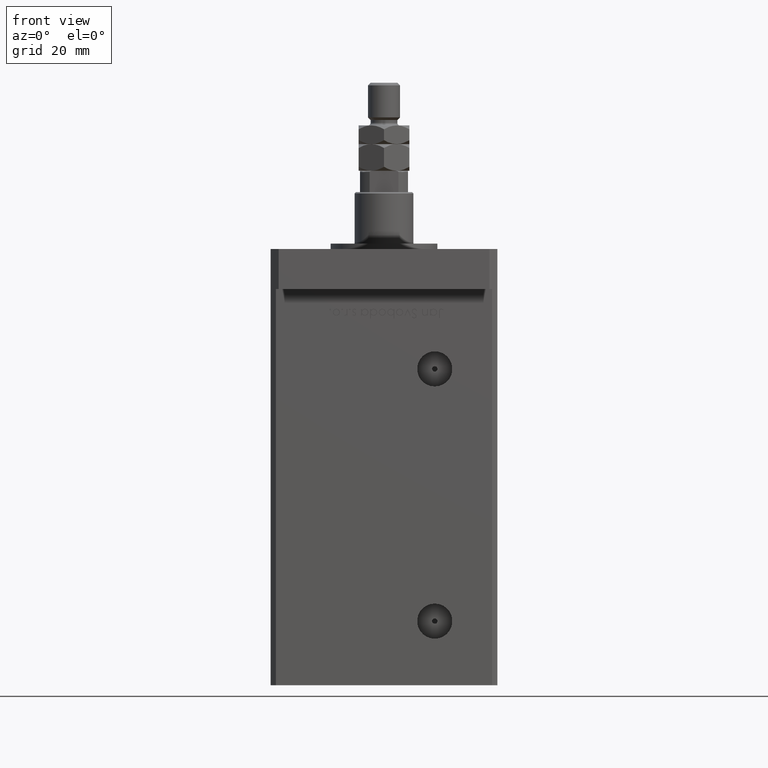
[diagram: clean part render]
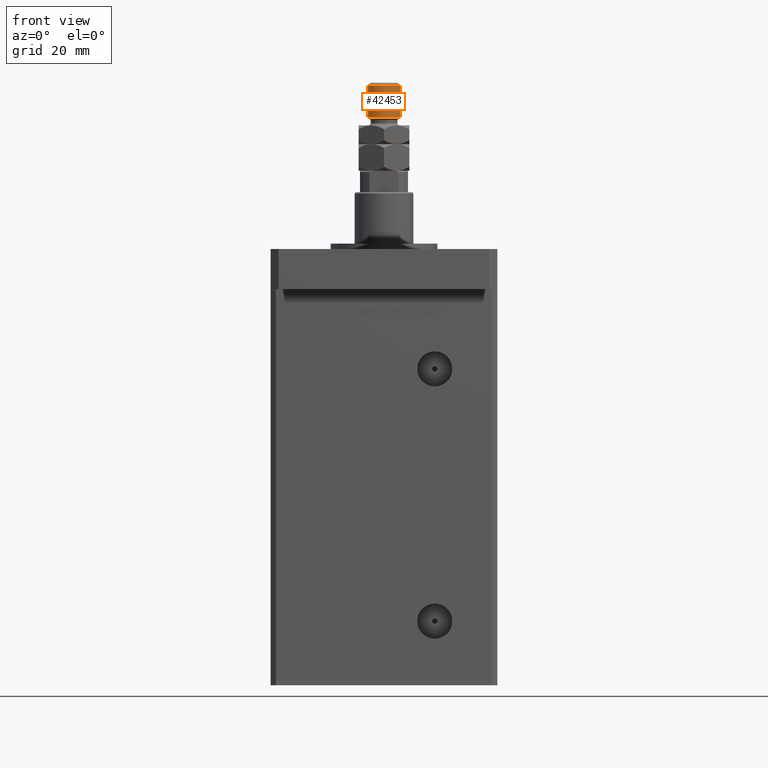
[diagram: same view with one face highlighted and labeled with its STEP entity id]
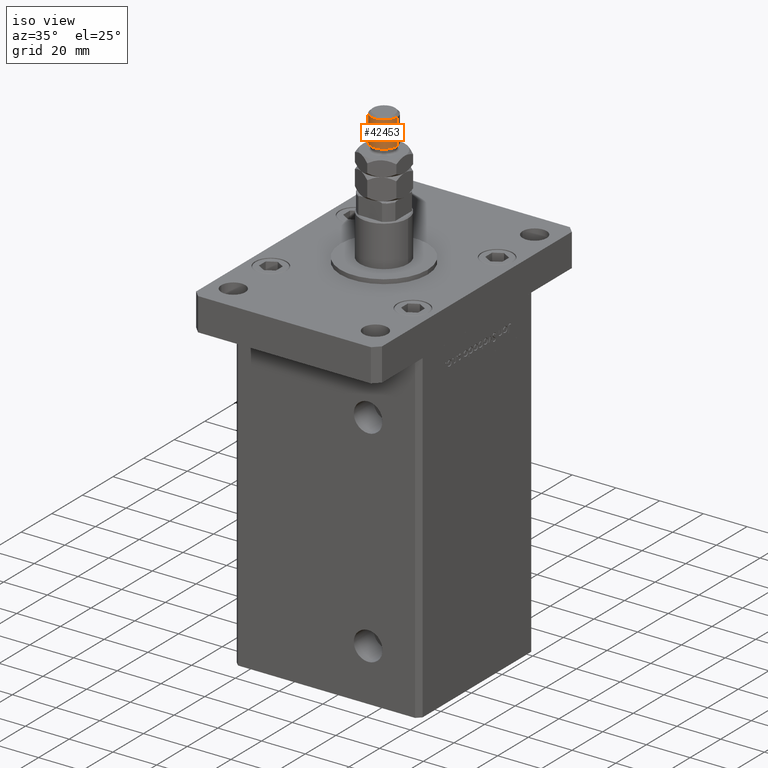
[diagram: same view with one face highlighted and labeled with its STEP entity id]
A machine part, front view. The second image highlights one B-rep face of the part: STEP entity #42453.
A second angle (iso view) of the same face is appended — the face is thin or edge-on in the first view.
In plain terms, the highlighted cylindrical surface (edge-blend (fillet) strip) has radius 6 mm, axis along (-0, -0, -1).
Its self-contained STEP definition (entity closure, byte-faithful):
#1997 = VERTEX_POINT ( 'NONE', #38394 ) ;
#2406 = DIRECTION ( 'NONE',  ( -0.000000000000000000, -0.000000000000000000, 1.000000000000000000 ) ) ;
#3377 = ORIENTED_EDGE ( 'NONE', *, *, #22653, .T. ) ;
#4335 = VECTOR ( 'NONE', #11895, 1000.000000000000000 ) ;
#4383 = ORIENTED_EDGE ( 'NONE', *, *, #23402, .F. ) ;
#5048 = ORIENTED_EDGE ( 'NONE', *, *, #36060, .T. ) ;
#6756 = DIRECTION ( 'NONE',  ( -1.000000000000000000, 0.000000000000000000, 0.000000000000000000 ) ) ;
#7434 = CARTESIAN_POINT ( 'NONE',  ( 6.000000000000000888, 7.347880794884120722E-16, 33.00000000000000000 ) ) ;
#10198 = CARTESIAN_POINT ( 'NONE',  ( -6.000000000000000888, 0.000000000000000000, 20.00000000000000711 ) ) ;
#10894 = AXIS2_PLACEMENT_3D ( 'NONE', #19427, #2406, #53228 ) ;
#11213 = DIRECTION ( 'NONE',  ( 0.000000000000000000, 0.000000000000000000, -1.000000000000000000 ) ) ;
#11895 = DIRECTION ( 'NONE',  ( -0.000000000000000000, -0.000000000000000000, -1.000000000000000000 ) ) ;
#17911 = CARTESIAN_POINT ( 'NONE',  ( -6.000000000000000888, 0.000000000000000000, 32.00000000000000000 ) ) ;
#19427 = CARTESIAN_POINT ( 'NONE',  ( 0.000000000000000000, 0.000000000000000000, 20.00000000000000711 ) ) ;
#20119 = EDGE_LOOP ( 'NONE', ( #4383, #3377, #28964, #5048 ) ) ;
#20360 = CIRCLE ( 'NONE', #27524, 6.000000000000000888 ) ;
#21936 = EDGE_CURVE ( 'NONE', #50514, #26393, #22044, .T. ) ;
#22044 = LINE ( 'NONE', #48273, #43528 ) ;
#22653 = EDGE_CURVE ( 'NONE', #1997, #50514, #20360, .T. ) ;
#23402 = EDGE_CURVE ( 'NONE', #1997, #42061, #41754, .T. ) ;
#26393 = VERTEX_POINT ( 'NONE', #10198 ) ;
#27015 = CARTESIAN_POINT ( 'NONE',  ( 6.000000000000000888, 7.347880794884120722E-16, 20.00000000000000711 ) ) ;
#27524 = AXIS2_PLACEMENT_3D ( 'NONE', #36609, #11213, #27977 ) ;
#27707 = CYLINDRICAL_SURFACE ( 'NONE', #42015, 6.000000000000000888 ) ;
#27977 = DIRECTION ( 'NONE',  ( 1.000000000000000000, 0.000000000000000000, 0.000000000000000000 ) ) ;
#28964 = ORIENTED_EDGE ( 'NONE', *, *, #21936, .T. ) ;
#30497 = CIRCLE ( 'NONE', #10894, 6.000000000000000888 ) ;
#32162 = FACE_OUTER_BOUND ( 'NONE', #20119, .T. ) ;
#36060 = EDGE_CURVE ( 'NONE', #26393, #42061, #30497, .T. ) ;
#36609 = CARTESIAN_POINT ( 'NONE',  ( 0.000000000000000000, 0.000000000000000000, 32.00000000000000000 ) ) ;
#38394 = CARTESIAN_POINT ( 'NONE',  ( 6.000000000000000888, 7.347880794884120722E-16, 32.00000000000000000 ) ) ;
#39077 = DIRECTION ( 'NONE',  ( -0.000000000000000000, -0.000000000000000000, -1.000000000000000000 ) ) ;
#41754 = LINE ( 'NONE', #7434, #4335 ) ;
#42015 = AXIS2_PLACEMENT_3D ( 'NONE', #44732, #44187, #6756 ) ;
#42061 = VERTEX_POINT ( 'NONE', #27015 ) ;
#42453 = ADVANCED_FACE ( 'NONE', ( #32162 ), #27707, .T. ) ;
#43528 = VECTOR ( 'NONE', #39077, 1000.000000000000000 ) ;
#44187 = DIRECTION ( 'NONE',  ( -0.000000000000000000, -0.000000000000000000, -1.000000000000000000 ) ) ;
#44732 = CARTESIAN_POINT ( 'NONE',  ( 0.000000000000000000, 0.000000000000000000, 33.00000000000000000 ) ) ;
#48273 = CARTESIAN_POINT ( 'NONE',  ( -6.000000000000000888, 0.000000000000000000, 33.00000000000000000 ) ) ;
#50514 = VERTEX_POINT ( 'NONE', #17911 ) ;
#53228 = DIRECTION ( 'NONE',  ( 1.000000000000000000, 0.000000000000000000, 0.000000000000000000 ) ) ;